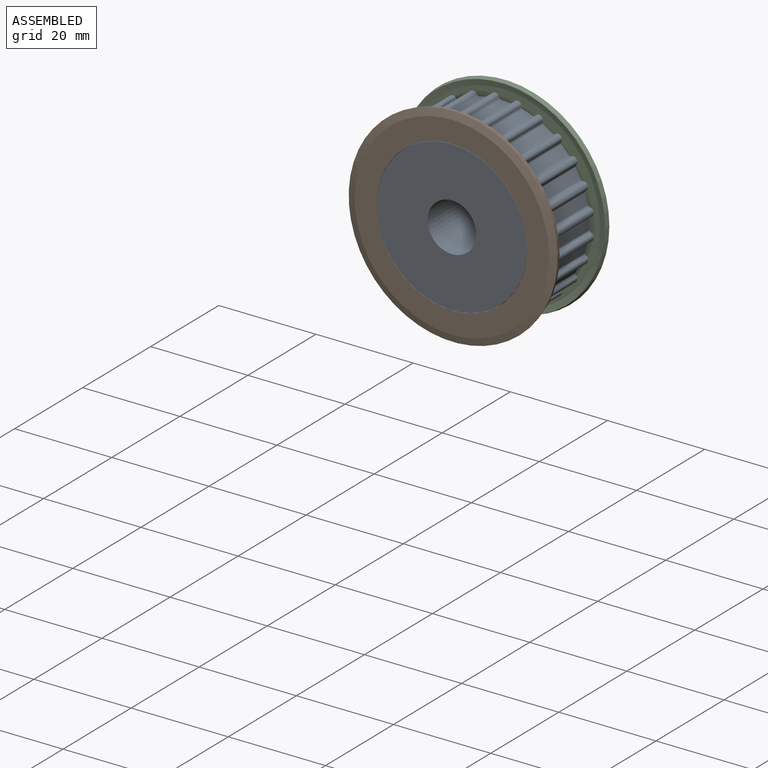
[diagram: assembled view]
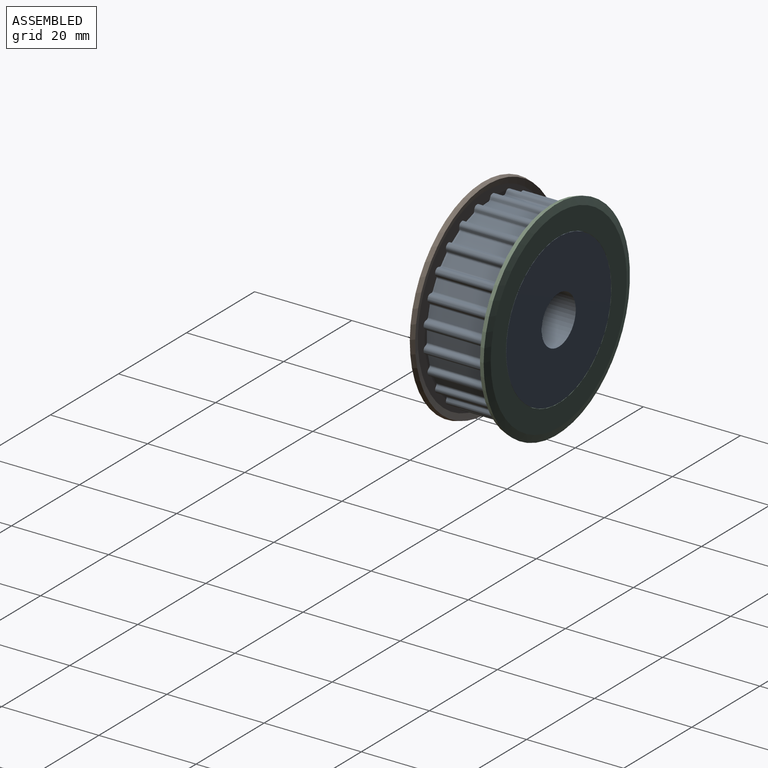
[diagram: assembled view, second angle]
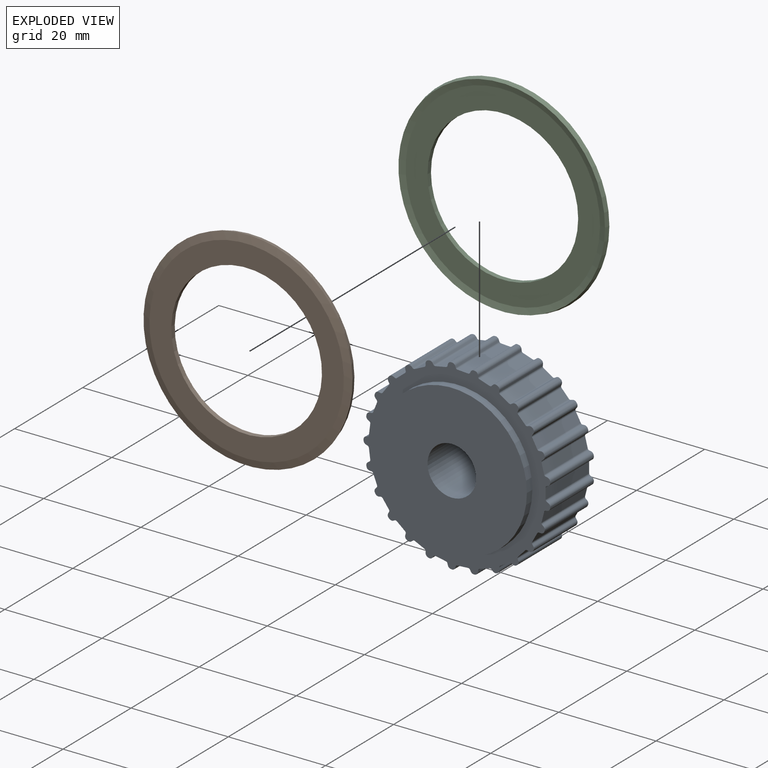
[diagram: exploded view]
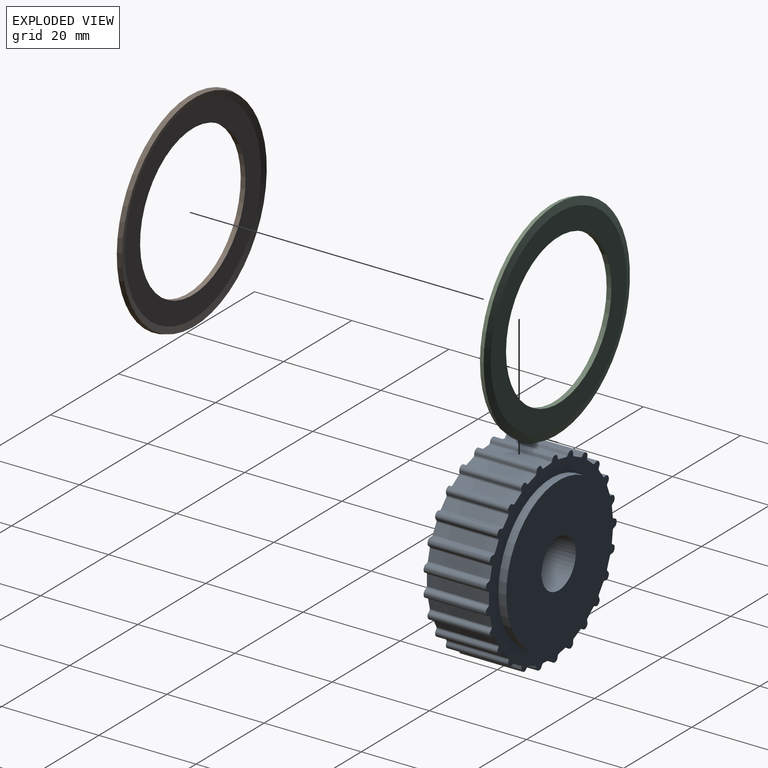
[diagram: exploded view, second angle]
ASSEMBLY  parts=3 mates=2
PART A: 256 faces, bbox 38.5x16x38.4 mm
  f0: plane 1.01x0.68mm, normal (1,0,0.06), area 0.1mm2, adj f1,f2,f3,f4,f5,f6,f7,f8
  f1: plane 0.5x0.04mm, normal (0.05,0.57,-0.82), area 0mm2, adj f0,f2,f7,f47
  f2: plane 0.53x0.52mm, normal (0.03,-0.83,-0.55), area 0.3mm2, adj f0,f1,f3,f47
  f3: plane 0.53x0.52mm, normal (0.03,0.83,-0.55), area 0.3mm2, adj f0,f2,f4,f47
  f4: plane 0.5x0.04mm, normal (0.05,-0.59,-0.8), area 0mm2, adj f0,f3,f5,f47
  f5: plane 0.53x0.52mm, normal (-0.03,-0.83,0.55), area 0.3mm2, adj f0,f4,f6,f47
  f6: plane 0.53x0.52mm, normal (0.03,-0.83,-0.55), area 0.3mm2, adj f0,f5,f12,f47
  f7: plane 0.53x0.52mm, normal (-0.03,0.83,0.55), area 0.3mm2, adj f0,f1,f8,f47
  f8: plane 0.53x0.52mm, normal (0.03,0.83,-0.55), area 0.3mm2, adj f0,f7,f9,f47
  f9: plane 0.5x0.04mm, normal (-0.05,0.53,0.85), area 0mm2, adj f0,f8,f10,f47
  f10: plane 0.53x0.52mm, normal (-0.03,-0.83,0.55), area 0.3mm2, adj f0,f9,f11,f47
  f11: plane 0.53x0.52mm, normal (-0.03,0.83,0.55), area 0.3mm2, adj f0,f10,f12,f47
  f12: plane 0.5x0.04mm, normal (-0.05,-0.55,0.83), area 0mm2, adj f0,f6,f11,f47
  f13: plane 1.02x0.58mm, normal (1,0,0.06), area 0.1mm2, adj f14,f15,f16,f17,f18,f19,f20,f21
  f14: extruded ~0.5x0.1mm, area 0.1mm2, adj f13,f15,f28,f191
  f15: cylinder r=0.19mm len=0.51mm, axis (-1,0,-0.06), area 0.1mm2, adj f13,f14,f16,f191
  f16: extruded ~0.51x0.21mm, area 0.1mm2, adj f13,f15,f17,f191
  f17: extruded ~0.5x0.13mm, area 0.1mm2, adj f13,f16,f26,f191
  f18: extruded ~0.51x0.25mm, area 0.1mm2, adj f13,f19,f31,f48
  f19: extruded ~0.52x0.3mm, area 0.2mm2, adj f13,f18,f20,f48
  f20: plane 0.5x0.29mm, normal (-0.06,0,1), area 0.1mm2, adj f13,f19,f29,f48
  f21: plane 0.5x0.29mm, normal (0.06,0,-1), area 0.1mm2, adj f13,f22,f32,f47
  f22: extruded ~0.5x0.14mm, area 0.1mm2, adj f13,f21,f23,f47
  f23: extruded ~0.51x0.23mm, area 0.1mm2, adj f13,f22,f24,f47
  f24: extruded ~0.51x0.25mm, area 0.1mm2, adj f13,f23,f25,f47
  f25: extruded ~0.52x0.31mm, area 0.2mm2, adj f13,f24,f35,f47
  f26: plane 0.5x0.27mm, normal (-0.06,0,1), area 0.1mm2, adj f13,f17,f27,f191
  f27: plane 0.53x0.45mm, normal (0,-1,0), area 0.2mm2, adj f13,f26,f28,f191
  f28: plane 0.5x0.29mm, normal (0.06,0,-1), area 0.1mm2, adj f13,f14,f27,f191
  f29: plane 0.56x0.53mm, normal (0,-1,0), area 0.3mm2, adj f13,f20,f30,f48
  f30: plane 0.5x0.27mm, normal (0.06,0,-1), area 0.1mm2, adj f13,f29,f31,f48
  f31: extruded ~0.5x0.15mm, area 0.1mm2, adj f13,f18,f30,f48
  f32: plane 1.05x0.56mm, normal (0,1,0), area 0.5mm2, adj f13,f21,f33,f47
  f33: plane 0.5x0.29mm, normal (-0.06,0,1), area 0.1mm2, adj f13,f32,f34,f47
  f34: extruded ~0.5x0.16mm, area 0.1mm2, adj f13,f33,f35,f47
  f35: extruded ~0.51x0.27mm, area 0.1mm2, adj f13,f25,f34,f47
  f36: plane 0.5x0.43mm, normal (-0.06,0,1), area 0.2mm2, adj f37,f41,f46,f47
  f37: plane 0.57x0.53mm, normal (0,-1,0), area 0.3mm2, adj f36,f38,f46,f47
  f38: plane 0.5x0.03mm, normal (-0.06,0,1), area 0mm2, adj f37,f39,f46,f47
  f39: plane 1.04x0.56mm, normal (0,1,0), area 0.5mm2, adj f38,f40,f46,f47
  f40: plane 0.5x0.45mm, normal (0.06,0,-1), area 0.2mm2, adj f39,f45,f46,f47
  f41: plane 0.5x0.05mm, normal (0,-1,0), area 0mm2, adj f36,f42,f46,f47
  f42: plane 0.5x0.43mm, normal (0.06,0,-1), area 0.2mm2, adj f41,f43,f46,f47
  f43: plane 0.53x0.45mm, normal (0,-1,0), area 0.2mm2, adj f42,f44,f46,f47
  f44: plane 0.5x0.43mm, normal (-0.06,0,1), area 0.2mm2, adj f43,f45,f46,f47
  f45: plane 0.5x0.05mm, normal (0,-1,0), area 0mm2, adj f40,f44,f46,f47
  f46: plane 1.01x0.45mm, normal (1,0,0.06), area 0mm2, adj f36,f37,f38,f39,f40,f41,f42,f43
  f47: plane 12.8x2.19mm, normal (1,0,0.06), area 27.4mm2, adj f1,f2,f3,f4,f5,f6,f7,f8
  f48: plane 0.53x0.53mm, normal (1,0,0.06), area 0.3mm2, adj f18,f19,f20,f29,f30,f31
  f49: cylinder r=5mm len=16mm, axis (0,-1,0), area 502.7mm2, adj f240,f254
  f50: cylinder r=15.45mm len=30.9mm, axis (0,-1,0), area 155.3mm2, adj f51,f240
  f51: plane 38.51x38.43mm, normal (0,1,0), area 331mm2, adj f47,f50,f52,f53,f54,f55,f56,f57
  f52: cylinder r=0.4mm len=12.8mm, axis (0,-1,0), area 5.8mm2, adj f51,f53,f153,f154
  f53: plane 12.8x2.19mm, normal (0,0,1), area 28mm2, adj f51,f52,f54,f153
  f54: cylinder r=0.4mm len=12.8mm, axis (0,-1,0), area 5.8mm2, adj f51,f53,f55,f153
  f55: plane 12.8x0.33mm, normal (0.91,0,0.42), area 4.6mm2, adj f51,f54,f56,f153
  f56: cylinder r=0.7mm len=12.8mm, axis (0,-1,0), area 11.3mm2, adj f51,f55,f57,f153
  f57: cylinder r=19.28mm len=12.8mm, axis (0,1,0), area 2.2mm2, adj f51,f56,f58,f153
  f58: cylinder r=0.7mm len=12.8mm, axis (0,-1,0), area 11.3mm2, adj f51,f57,f59,f153
  f59: plane 12.8x0.36mm, normal (-0.98,0,0.18), area 4.6mm2, adj f51,f58,f60,f153
  f60: cylinder r=0.4mm len=12.8mm, axis (0,-1,0), area 5.8mm2, adj f51,f59,f61,f153
  f61: plane 12.8x2.12mm, normal (-0.25,0,0.97), area 28mm2, adj f51,f60,f62,f153
  f62: cylinder r=0.4mm len=12.8mm, axis (0,-1,0), area 5.8mm2, adj f51,f61,f63,f153
  f63: plane 12.8x0.28mm, normal (0.77,0,0.63), area 4.6mm2, adj f51,f62,f64,f153
  f64: cylinder r=0.7mm len=12.8mm, axis (0,-1,0), area 11.3mm2, adj f51,f63,f65,f153
  f65: cylinder r=19.28mm len=12.8mm, axis (0,1,0), area 2.2mm2, adj f51,f64,f66,f153
  f66: cylinder r=0.7mm len=12.8mm, axis (0,-1,0), area 11.3mm2, adj f51,f65,f67,f153
  f67: plane 12.8x0.36mm, normal (-1,0,-0.07), area 4.6mm2, adj f51,f66,f68,f153
  f68: cylinder r=0.4mm len=12.8mm, axis (0,-1,0), area 5.8mm2, adj f51,f67,f69,f153
  f69: plane 12.8x1.92mm, normal (-0.48,0,0.88), area 28mm2, adj f51,f68,f70,f153
  f70: cylinder r=0.4mm len=12.8mm, axis (0,-1,0), area 5.8mm2, adj f51,f69,f71,f153
  f71: plane 12.8x0.29mm, normal (0.59,0,0.81), area 4.6mm2, adj f51,f70,f72,f153
  f72: cylinder r=0.7mm len=12.8mm, axis (0,-1,0), area 11.3mm2, adj f51,f71,f73,f153
  f73: cylinder r=19.28mm len=12.8mm, axis (0,1,0), area 2.2mm2, adj f51,f72,f74,f153
  f74: cylinder r=0.7mm len=12.8mm, axis (0,-1,0), area 11.3mm2, adj f51,f73,f75,f153
  f75: plane 12.8x0.34mm, normal (-0.95,0,-0.31), area 4.6mm2, adj f51,f74,f76,f153
  f76: cylinder r=0.4mm len=12.8mm, axis (0,-1,0), area 5.8mm2, adj f51,f75,f77,f153
  f77: plane 12.8x1.6mm, normal (-0.68,0,0.73), area 28mm2, adj f51,f76,f78,f153
  f78: cylinder r=0.4mm len=12.8mm, axis (0,-1,0), area 5.8mm2, adj f51,f77,f79,f153
  f79: plane 12.8x0.34mm, normal (0.37,0,0.93), area 4.6mm2, adj f51,f78,f80,f153
  f80: cylinder r=0.7mm len=12.8mm, axis (0,-1,0), area 11.3mm2, adj f51,f79,f81,f153
  f81: cylinder r=19.28mm len=12.8mm, axis (0,1,0), area 2.2mm2, adj f51,f80,f82,f153
  f82: cylinder r=0.7mm len=12.8mm, axis (0,-1,0), area 11.3mm2, adj f51,f81,f83,f153
  f83: plane 12.8x0.31mm, normal (-0.84,0,-0.54), area 4.6mm2, adj f51,f82,f84,f153
  f84: cylinder r=0.4mm len=12.8mm, axis (0,-1,0), area 5.8mm2, adj f51,f83,f85,f153
  f85: plane 12.8x1.85mm, normal (-0.84,0,0.54), area 28mm2, adj f51,f84,f86,f153
  f86: cylinder r=0.4mm len=12.8mm, axis (0,-1,0), area 5.8mm2, adj f51,f85,f87,f153
  f87: plane 12.8x0.36mm, normal (0.13,0,0.99), area 4.6mm2, adj f51,f86,f88,f153
  f88: cylinder r=0.7mm len=12.8mm, axis (0,-1,0), area 11.3mm2, adj f51,f87,f89,f153
  f89: cylinder r=19.28mm len=12.8mm, axis (0,1,0), area 2.2mm2, adj f51,f88,f90,f153
  f90: cylinder r=0.7mm len=12.8mm, axis (0,-1,0), area 11.3mm2, adj f51,f89,f91,f153
  f91: plane 12.8x0.27mm, normal (-0.68,0,-0.73), area 4.6mm2, adj f51,f90,f92,f153
  f92: cylinder r=0.4mm len=12.8mm, axis (0,-1,0), area 5.8mm2, adj f51,f91,f93,f153
  f93: plane 12.8x2.08mm, normal (-0.95,0,0.31), area 28mm2, adj f51,f92,f94,f153
  f94: cylinder r=0.4mm len=12.8mm, axis (0,-1,0), area 5.8mm2, adj f51,f93,f95,f153
  f95: plane 12.8x0.36mm, normal (-0.12,0,0.99), area 4.6mm2, adj f51,f94,f96,f153
  f96: cylinder r=0.7mm len=12.8mm, axis (0,-1,0), area 11.3mm2, adj f51,f95,f97,f153
  f97: cylinder r=19.28mm len=12.8mm, axis (0,1,0), area 2.2mm2, adj f51,f96,f98,f153
  f98: cylinder r=0.7mm len=12.8mm, axis (0,-1,0), area 11.3mm2, adj f51,f97,f99,f153
  f99: plane 12.8x0.32mm, normal (-0.48,0,-0.88), area 4.6mm2, adj f51,f98,f100,f153
  f100: cylinder r=0.4mm len=12.8mm, axis (0,-1,0), area 5.8mm2, adj f51,f99,f101,f153
  f101: plane 12.8x2.19mm, normal (-1,0,0.06), area 28mm2, adj f51,f100,f102,f153
  f102: cylinder r=0.4mm len=12.8mm, axis (0,-1,0), area 5.8mm2, adj f51,f101,f103,f153
  f103: plane 12.8x0.34mm, normal (-0.36,0,0.93), area 4.6mm2, adj f51,f102,f104,f153
  f104: cylinder r=0.7mm len=12.8mm, axis (0,-1,0), area 11.3mm2, adj f51,f103,f105,f153
  f105: cylinder r=19.28mm len=12.8mm, axis (0,1,0), area 2.2mm2, adj f51,f104,f106,f153
  f106: cylinder r=0.7mm len=12.8mm, axis (0,-1,0), area 11.3mm2, adj f51,f105,f107,f153
  f107: plane 12.8x0.35mm, normal (-0.25,0,-0.97), area 4.6mm2, adj f51,f106,f108,f153
  f108: cylinder r=0.4mm len=12.8mm, axis (0,-1,0), area 5.8mm2, adj f51,f107,f109,f153
  f109: plane 12.8x2.15mm, normal (-0.98,0,-0.19), area 28mm2, adj f51,f108,f110,f153
  f110: cylinder r=0.4mm len=12.8mm, axis (0,-1,0), area 5.8mm2, adj f51,f109,f111,f153
  f111: plane 12.8x0.29mm, normal (-0.58,0,0.81), area 4.6mm2, adj f51,f110,f112,f153
  f112: cylinder r=0.7mm len=12.8mm, axis (0,-1,0), area 11.3mm2, adj f51,f111,f113,f153
  f113: cylinder r=19.28mm len=12.8mm, axis (0,1,0), area 2.2mm2, adj f51,f112,f114,f153
  f114: cylinder r=0.7mm len=12.8mm, axis (0,-1,0), area 11.3mm2, adj f51,f113,f115,f153
  f115: plane 12.8x0.36mm, normal (0,0,-1), area 4.6mm2, adj f51,f114,f116,f153
  f116: cylinder r=0.4mm len=12.8mm, axis (0,-1,0), area 5.8mm2, adj f51,f115,f117,f153
  f117: plane 12.8x1.98mm, normal (-0.9,0,-0.43), area 28mm2, adj f51,f116,f118,f153
  f118: cylinder r=0.4mm len=12.8mm, axis (0,-1,0), area 5.8mm2, adj f51,f117,f119,f153
  f119: plane 12.8x0.28mm, normal (-0.77,0,0.64), area 4.6mm2, adj f51,f118,f120,f153
  f120: cylinder r=0.7mm len=12.8mm, axis (0,-1,0), area 11.3mm2, adj f51,f119,f121,f153
  f121: cylinder r=19.28mm len=12.8mm, axis (0,1,0), area 2.2mm2, adj f51,f120,f122,f153
  f122: cylinder r=0.7mm len=12.8mm, axis (0,-1,0), area 11.3mm2, adj f51,f121,f123,f153
  f123: plane 12.8x0.35mm, normal (0.25,0,-0.97), area 4.6mm2, adj f51,f122,f124,f153
  f124: cylinder r=0.4mm len=12.8mm, axis (0,-1,0), area 5.8mm2, adj f51,f123,f125,f153
  f125: plane 12.8x1.69mm, normal (-0.77,0,-0.64), area 28mm2, adj f51,f124,f126,f153
  f126: cylinder r=0.4mm len=12.8mm, axis (0,-1,0), area 5.8mm2, adj f51,f125,f127,f153
  f127: plane 12.8x0.33mm, normal (-0.9,0,0.43), area 4.6mm2, adj f51,f126,f128,f153
  f128: cylinder r=0.7mm len=12.8mm, axis (0,-1,0), area 11.3mm2, adj f51,f127,f129,f153
  f129: cylinder r=19.28mm len=12.8mm, axis (0,1,0), area 2.2mm2, adj f51,f128,f130,f153
  f130: cylinder r=0.7mm len=12.8mm, axis (0,-1,0), area 11.3mm2, adj f51,f129,f131,f153
  f131: plane 12.8x0.32mm, normal (0.48,0,-0.87), area 4.6mm2, adj f51,f130,f132,f153
  f132: cylinder r=0.4mm len=12.8mm, axis (0,-1,0), area 5.8mm2, adj f51,f131,f133,f153
  f133: plane 12.8x1.77mm, normal (-0.59,0,-0.81), area 28mm2, adj f51,f132,f134,f153
  f134: cylinder r=0.4mm len=12.8mm, axis (0,-1,0), area 5.8mm2, adj f51,f133,f135,f153
  f135: plane 12.8x0.36mm, normal (-0.98,0,0.19), area 4.6mm2, adj f51,f134,f136,f153
  f136: cylinder r=0.7mm len=12.8mm, axis (0,-1,0), area 11.3mm2, adj f51,f135,f137,f153
  f137: cylinder r=19.28mm len=12.8mm, axis (0,1,0), area 2.2mm2, adj f51,f136,f138,f153
  f138: cylinder r=0.7mm len=12.8mm, axis (0,-1,0), area 11.3mm2, adj f51,f137,f139,f153
  f139: plane 12.8x0.26mm, normal (0.69,0,-0.73), area 4.6mm2, adj f51,f138,f140,f153
  f140: cylinder r=0.4mm len=12.8mm, axis (0,-1,0), area 5.8mm2, adj f51,f139,f141,f153
  f141: plane 12.8x2.04mm, normal (-0.37,0,-0.93), area 28mm2, adj f51,f140,f142,f153
  f142: cylinder r=0.4mm len=12.8mm, axis (0,-1,0), area 5.8mm2, adj f51,f141,f143,f153
  f143: plane 12.8x0.36mm, normal (-1,0,-0.06), area 4.6mm2, adj f51,f142,f144,f153
  f144: cylinder r=0.7mm len=12.8mm, axis (0,-1,0), area 11.3mm2, adj f51,f143,f145,f153
  f145: cylinder r=19.28mm len=12.8mm, axis (0,1,0), area 2.2mm2, adj f51,f144,f146,f153
  f146: cylinder r=0.7mm len=12.8mm, axis (0,-1,0), area 11.3mm2, adj f51,f145,f147,f153
  f147: plane 12.8x0.31mm, normal (0.85,0,-0.53), area 4.6mm2, adj f51,f146,f148,f153
  f148: cylinder r=0.4mm len=12.8mm, axis (0,-1,0), area 5.8mm2, adj f51,f147,f149,f153
  f149: plane 12.8x2.17mm, normal (-0.13,0,-0.99), area 28mm2, adj f51,f148,f150,f153
  f150: cylinder r=0.4mm len=12.8mm, axis (0,-1,0), area 5.8mm2, adj f51,f149,f151,f153
  f151: plane 12.8x0.35mm, normal (-0.95,0,-0.31), area 4.6mm2, adj f51,f150,f153,f239
  f152: cylinder r=15.45mm len=30.9mm, axis (0,-1,0), area 155.3mm2, adj f153,f254
  f153: plane 38.51x38.43mm, normal (0,-1,0), area 331mm2, adj f47,f52,f53,f54,f55,f56,f57,f58
  f154: plane 12.8x0.33mm, normal (-0.91,0,0.42), area 4.6mm2, adj f51,f52,f153,f253
  f155: cylinder r=0.7mm len=12.8mm, axis (0,-1,0), area 11.3mm2, adj f51,f153,f157,f255
  f156: plane 12.8x2.12mm, normal (0.25,0,0.97), area 28mm2, adj f51,f153,f158,f161
  f157: plane 12.8x0.36mm, normal (0.98,0,0.18), area 4.6mm2, adj f51,f153,f155,f158
  f158: cylinder r=0.4mm len=12.8mm, axis (0,-1,0), area 5.8mm2, adj f51,f153,f156,f157
  f159: cylinder r=0.7mm len=12.8mm, axis (0,-1,0), area 11.3mm2, adj f51,f153,f160,f252
  f160: plane 12.8x0.28mm, normal (-0.77,0,0.63), area 4.6mm2, adj f51,f153,f159,f161
  f161: cylinder r=0.4mm len=12.8mm, axis (0,-1,0), area 5.8mm2, adj f51,f153,f156,f160
  f162: cylinder r=0.7mm len=12.8mm, axis (0,-1,0), area 11.3mm2, adj f51,f153,f164,f252
  f163: plane 12.8x1.92mm, normal (0.48,0,0.88), area 28mm2, adj f51,f153,f165,f168
  f164: plane 12.8x0.36mm, normal (1,0,-0.07), area 4.6mm2, adj f51,f153,f162,f165
  f165: cylinder r=0.4mm len=12.8mm, axis (0,-1,0), area 5.8mm2, adj f51,f153,f163,f164
  f166: cylinder r=0.7mm len=12.8mm, axis (0,-1,0), area 11.3mm2, adj f51,f153,f167,f251
  f167: plane 12.8x0.29mm, normal (-0.59,0,0.81), area 4.6mm2, adj f51,f153,f166,f168
  f168: cylinder r=0.4mm len=12.8mm, axis (0,-1,0), area 5.8mm2, adj f51,f153,f163,f167
  f169: cylinder r=0.7mm len=12.8mm, axis (0,-1,0), area 11.3mm2, adj f51,f153,f171,f251
  f170: plane 12.8x1.6mm, normal (0.68,0,0.73), area 28mm2, adj f51,f153,f172,f175
  f171: plane 12.8x0.34mm, normal (0.95,0,-0.31), area 4.6mm2, adj f51,f153,f169,f172
  f172: cylinder r=0.4mm len=12.8mm, axis (0,-1,0), area 5.8mm2, adj f51,f153,f170,f171
  f173: cylinder r=0.7mm len=12.8mm, axis (0,-1,0), area 11.3mm2, adj f51,f153,f174,f250
  f174: plane 12.8x0.34mm, normal (-0.37,0,0.93), area 4.6mm2, adj f51,f153,f173,f175
  f175: cylinder r=0.4mm len=12.8mm, axis (0,-1,0), area 5.8mm2, adj f51,f153,f170,f174
  f176: cylinder r=0.7mm len=12.8mm, axis (0,-1,0), area 11.3mm2, adj f51,f153,f178,f250
  f177: plane 12.8x1.85mm, normal (0.84,0,0.54), area 28mm2, adj f51,f153,f179,f182
  f178: plane 12.8x0.31mm, normal (0.84,0,-0.54), area 4.6mm2, adj f51,f153,f176,f179
  f179: cylinder r=0.4mm len=12.8mm, axis (0,-1,0), area 5.8mm2, adj f51,f153,f177,f178
  f180: cylinder r=0.7mm len=12.8mm, axis (0,-1,0), area 11.3mm2, adj f51,f153,f181,f249
  f181: plane 12.8x0.36mm, normal (-0.13,0,0.99), area 4.6mm2, adj f51,f153,f180,f182
  f182: cylinder r=0.4mm len=12.8mm, axis (0,-1,0), area 5.8mm2, adj f51,f153,f177,f181
  f183: cylinder r=0.7mm len=12.8mm, axis (0,-1,0), area 11.3mm2, adj f51,f153,f185,f249
  f184: plane 12.8x2.08mm, normal (0.95,0,0.31), area 28mm2, adj f51,f153,f186,f189
  f185: plane 12.8x0.27mm, normal (0.68,0,-0.73), area 4.6mm2, adj f51,f153,f183,f186
  f186: cylinder r=0.4mm len=12.8mm, axis (0,-1,0), area 5.8mm2, adj f51,f153,f184,f185
  f187: cylinder r=0.7mm len=12.8mm, axis (0,-1,0), area 11.3mm2, adj f51,f153,f188,f248
  f188: plane 12.8x0.36mm, normal (0.12,0,0.99), area 4.6mm2, adj f51,f153,f187,f189
  f189: cylinder r=0.4mm len=12.8mm, axis (0,-1,0), area 5.8mm2, adj f51,f153,f184,f188
  f190: cylinder r=0.7mm len=12.8mm, axis (0,-1,0), area 11.3mm2, adj f51,f153,f192,f248
  f191: plane 0.48x0.42mm, normal (1,0,0.06), area 0.2mm2, adj f14,f15,f16,f17,f26,f27,f28
  f192: plane 12.8x0.32mm, normal (0.48,0,-0.88), area 4.6mm2, adj f51,f153,f190,f193
  f193: cylinder r=0.4mm len=12.8mm, axis (0,-1,0), area 5.8mm2, adj f47,f51,f153,f192
  f194: cylinder r=0.7mm len=12.8mm, axis (0,-1,0), area 11.3mm2, adj f51,f153,f195,f247
  f195: plane 12.8x0.34mm, normal (0.36,0,0.93), area 4.6mm2, adj f51,f153,f194,f196
  f196: cylinder r=0.4mm len=12.8mm, axis (0,-1,0), area 5.8mm2, adj f47,f51,f153,f195
  f197: cylinder r=0.7mm len=12.8mm, axis (0,-1,0), area 11.3mm2, adj f51,f153,f199,f247
  f198: plane 12.8x2.15mm, normal (0.98,0,-0.19), area 28mm2, adj f51,f153,f200,f203
  f199: plane 12.8x0.35mm, normal (0.25,0,-0.97), area 4.6mm2, adj f51,f153,f197,f200
  f200: cylinder r=0.4mm len=12.8mm, axis (0,-1,0), area 5.8mm2, adj f51,f153,f198,f199
  f201: cylinder r=0.7mm len=12.8mm, axis (0,-1,0), area 11.3mm2, adj f51,f153,f202,f246
  f202: plane 12.8x0.29mm, normal (0.58,0,0.81), area 4.6mm2, adj f51,f153,f201,f203
  f203: cylinder r=0.4mm len=12.8mm, axis (0,-1,0), area 5.8mm2, adj f51,f153,f198,f202
  f204: cylinder r=0.7mm len=12.8mm, axis (0,-1,0), area 11.3mm2, adj f51,f153,f206,f246
  f205: plane 12.8x1.98mm, normal (0.9,0,-0.43), area 28mm2, adj f51,f153,f207,f210
  f206: plane 12.8x0.36mm, normal (0,0,-1), area 4.6mm2, adj f51,f153,f204,f207
  f207: cylinder r=0.4mm len=12.8mm, axis (0,-1,0), area 5.8mm2, adj f51,f153,f205,f206
  f208: cylinder r=0.7mm len=12.8mm, axis (0,-1,0), area 11.3mm2, adj f51,f153,f209,f245
  f209: plane 12.8x0.28mm, normal (0.77,0,0.64), area 4.6mm2, adj f51,f153,f208,f210
  f210: cylinder r=0.4mm len=12.8mm, axis (0,-1,0), area 5.8mm2, adj f51,f153,f205,f209
  f211: cylinder r=0.7mm len=12.8mm, axis (0,-1,0), area 11.3mm2, adj f51,f153,f213,f245
  f212: plane 12.8x1.69mm, normal (0.77,0,-0.64), area 28mm2, adj f51,f153,f214,f217
  f213: plane 12.8x0.35mm, normal (-0.25,0,-0.97), area 4.6mm2, adj f51,f153,f211,f214
  f214: cylinder r=0.4mm len=12.8mm, axis (0,-1,0), area 5.8mm2, adj f51,f153,f212,f213
  f215: cylinder r=0.7mm len=12.8mm, axis (0,-1,0), area 11.3mm2, adj f51,f153,f216,f244
  f216: plane 12.8x0.33mm, normal (0.9,0,0.43), area 4.6mm2, adj f51,f153,f215,f217
  f217: cylinder r=0.4mm len=12.8mm, axis (0,-1,0), area 5.8mm2, adj f51,f153,f212,f216
  f218: cylinder r=0.7mm len=12.8mm, axis (0,-1,0), area 11.3mm2, adj f51,f153,f220,f244
  f219: plane 12.8x1.77mm, normal (0.59,0,-0.81), area 28mm2, adj f51,f153,f221,f224
  f220: plane 12.8x0.32mm, normal (-0.48,0,-0.87), area 4.6mm2, adj f51,f153,f218,f221
  f221: cylinder r=0.4mm len=12.8mm, axis (0,-1,0), area 5.8mm2, adj f51,f153,f219,f220
  f222: cylinder r=0.7mm len=12.8mm, axis (0,-1,0), area 11.3mm2, adj f51,f153,f223,f243
  f223: plane 12.8x0.36mm, normal (0.98,0,0.19), area 4.6mm2, adj f51,f153,f222,f224
  f224: cylinder r=0.4mm len=12.8mm, axis (0,-1,0), area 5.8mm2, adj f51,f153,f219,f223
  f225: cylinder r=0.7mm len=12.8mm, axis (0,-1,0), area 11.3mm2, adj f51,f153,f227,f243
  f226: plane 12.8x2.04mm, normal (0.37,0,-0.93), area 28mm2, adj f51,f153,f228,f231
  f227: plane 12.8x0.26mm, normal (-0.69,0,-0.73), area 4.6mm2, adj f51,f153,f225,f228
  f228: cylinder r=0.4mm len=12.8mm, axis (0,-1,0), area 5.8mm2, adj f51,f153,f226,f227
  f229: cylinder r=0.7mm len=12.8mm, axis (0,-1,0), area 11.3mm2, adj f51,f153,f230,f242
  f230: plane 12.8x0.36mm, normal (1,0,-0.06), area 4.6mm2, adj f51,f153,f229,f231
  f231: cylinder r=0.4mm len=12.8mm, axis (0,-1,0), area 5.8mm2, adj f51,f153,f226,f230
  f232: cylinder r=0.7mm len=12.8mm, axis (0,-1,0), area 11.3mm2, adj f51,f153,f234,f242
  f233: plane 12.8x2.17mm, normal (0.13,0,-0.99), area 28mm2, adj f51,f153,f235,f238
  f234: plane 12.8x0.31mm, normal (-0.85,0,-0.53), area 4.6mm2, adj f51,f153,f232,f235
  f235: cylinder r=0.4mm len=12.8mm, axis (0,-1,0), area 5.8mm2, adj f51,f153,f233,f234
  f236: cylinder r=0.7mm len=12.8mm, axis (0,-1,0), area 11.3mm2, adj f51,f153,f237,f241
  f237: plane 12.8x0.35mm, normal (0.95,0,-0.31), area 4.6mm2, adj f51,f153,f236,f238
  f238: cylinder r=0.4mm len=12.8mm, axis (0,-1,0), area 5.8mm2, adj f51,f153,f233,f237
  f239: cylinder r=0.7mm len=12.8mm, axis (0,-1,0), area 11.3mm2, adj f51,f151,f153,f241
  f240: plane 30.9x30.9mm, normal (0,1,0), area 671.4mm2, adj f49,f50
  f241: cylinder r=19.28mm len=12.8mm, axis (0,1,0), area 2.2mm2, adj f51,f153,f236,f239
  f242: cylinder r=19.28mm len=12.8mm, axis (0,1,0), area 2.2mm2, adj f51,f153,f229,f232
  f243: cylinder r=19.28mm len=12.8mm, axis (0,1,0), area 2.2mm2, adj f51,f153,f222,f225
  f244: cylinder r=19.28mm len=12.8mm, axis (0,1,0), area 2.2mm2, adj f51,f153,f215,f218
  f245: cylinder r=19.28mm len=12.8mm, axis (0,1,0), area 2.2mm2, adj f51,f153,f208,f211
  f246: cylinder r=19.28mm len=12.8mm, axis (0,1,0), area 2.2mm2, adj f51,f153,f201,f204
  f247: cylinder r=19.28mm len=12.8mm, axis (0,1,0), area 2.2mm2, adj f51,f153,f194,f197
  f248: cylinder r=19.28mm len=12.8mm, axis (0,1,0), area 2.2mm2, adj f51,f153,f187,f190
  f249: cylinder r=19.28mm len=12.8mm, axis (0,1,0), area 2.2mm2, adj f51,f153,f180,f183
  f250: cylinder r=19.28mm len=12.8mm, axis (0,1,0), area 2.2mm2, adj f51,f153,f173,f176
  f251: cylinder r=19.28mm len=12.8mm, axis (0,1,0), area 2.2mm2, adj f51,f153,f166,f169
  f252: cylinder r=19.28mm len=12.8mm, axis (0,1,0), area 2.2mm2, adj f51,f153,f159,f162
  f253: cylinder r=0.7mm len=12.8mm, axis (0,-1,0), area 11.3mm2, adj f51,f153,f154,f255
  f254: plane 30.9x30.9mm, normal (0,-1,0), area 671.4mm2, adj f49,f152
  f255: cylinder r=19.28mm len=12.8mm, axis (0,1,0), area 2.2mm2, adj f51,f153,f155,f253
PART B: 6 faces, bbox 43x1.3x43 mm
  f0: cone r=20.62mm half-angle=75deg, axis (0,1,0), area 167.7mm2, adj f1,f5
  f1: cone r=21.38mm half-angle=15deg, axis (0,-1,0), area 129.7mm2, adj f0,f2
  f2: cone r=20.75mm half-angle=75deg, axis (0,1,0), area 202.5mm2, adj f1,f3
  f3: plane 40x40mm, normal (0,-1,0), area 501.9mm2, adj f2,f4
  f4: cylinder r=15.5mm len=31mm, axis (0,-1,0), area 97.4mm2, adj f3,f5
  f5: plane 40x40mm, normal (0,1,0), area 501.9mm2, adj f0,f4
PART C: 6 faces, bbox 43x1.3x43 mm
  f0: cone r=20.62mm half-angle=75deg, axis (0,-1,0), area 167.7mm2, adj f1,f5
  f1: cone r=21.38mm half-angle=15deg, axis (0,1,0), area 129.7mm2, adj f0,f2
  f2: cone r=20.75mm half-angle=75deg, axis (0,-1,0), area 202.5mm2, adj f1,f3
  f3: plane 40x40mm, normal (0,1,0), area 501.9mm2, adj f2,f4
  f4: cylinder r=15.5mm len=31mm, axis (0,1,0), area 97.4mm2, adj f3,f5
  f5: plane 40x40mm, normal (0,-1,0), area 501.9mm2, adj f0,f4
PLACE A rot(axis=(0,1,0),90deg) t=(-125.14,121.03,-25.86)mm
PLACE B t=(-125.14,106.63,-25.86)mm fixed
PLACE C rot(axis=(0,1,0),180deg) t=(-125.14,135.43,-25.86)mm
MATE planar C.f4 <-> A.f49  axis (0,1,0) through (-125.14,129.03,-25.86)mm
MATE planar A.f49 <-> B.f4  axis (0,-1,0) through (-125.14,113.03,-25.86)mm
